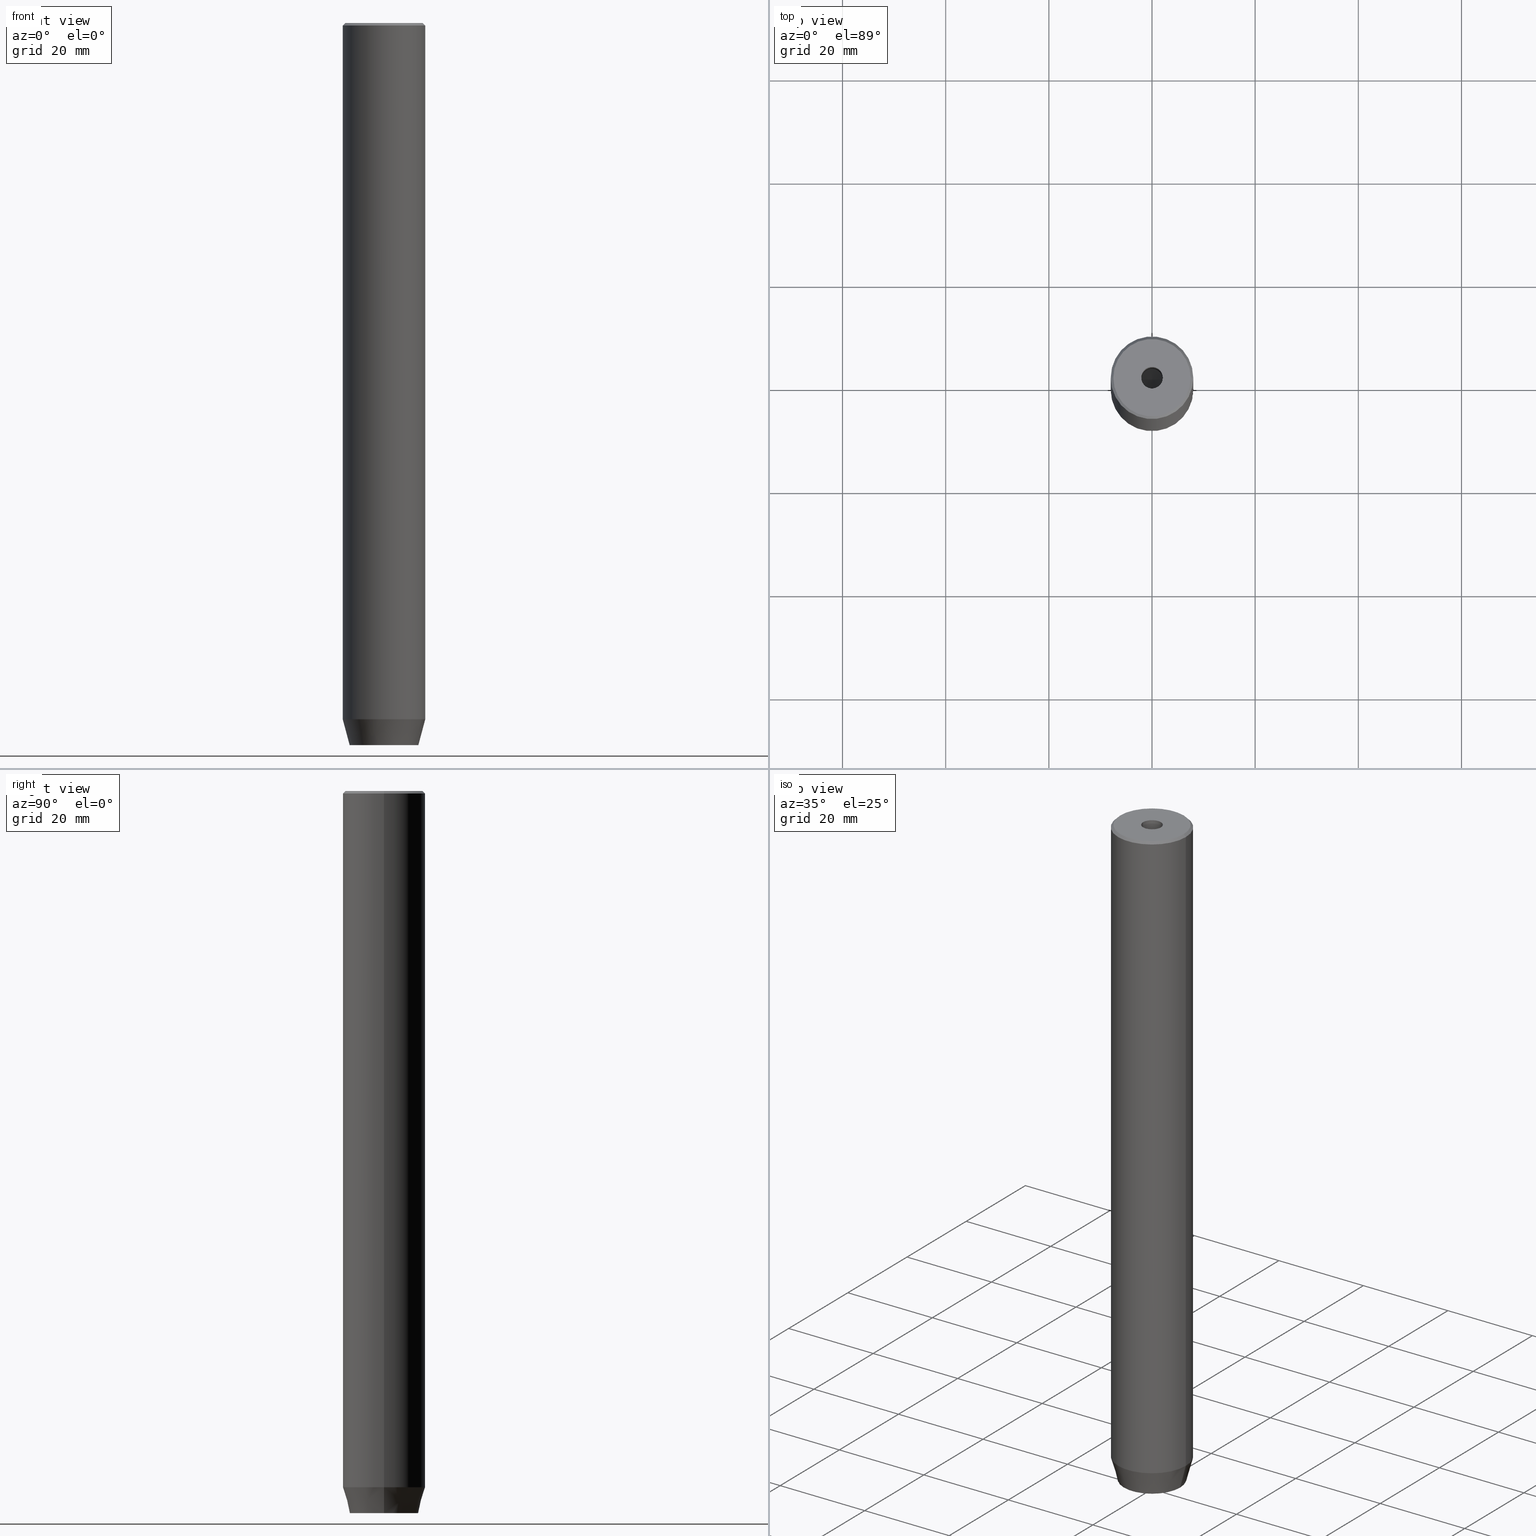
[diagram: canonical four-view strip — front | top / right | iso, engineering-drawing reading convention]
A machine part, canonical four-view strip (front | top / right | iso — engineering-drawing reading convention). The complete STEP part file that produces these views, byte-faithful:
ISO-10303-21;
HEADER;
FILE_DESCRIPTION (( 'STEP AP203' ),
    '1' );
FILE_NAME ('47f0.STEP',
    '2024-01-02T20:39:05',
    ( '' ),
    ( '' ),
    'SwSTEP 2.0',
    'SolidWorks 2019',
    '' );
FILE_SCHEMA (( 'CONFIG_CONTROL_DESIGN' ));
ENDSEC;

DATA;
#1 = DIRECTION ( 'NONE',  ( -0.000000000000000000, -0.000000000000000000, 1.000000000000000000 ) ) ;
#2 = DIRECTION ( 'NONE',  ( -0.000000000000000000, -0.000000000000000000, 1.000000000000000000 ) ) ;
#3 = APPLICATION_PROTOCOL_DEFINITION ( 'international standard', 'config_control_design', 1994, #573 ) ;
#4 = APPROVAL ( #151, 'NEUR�EN�' ) ;
#5 = CARTESIAN_POINT ( 'NONE',  ( 0.000000000000000000, 6.660254037844382857, -140.0000000000000000 ) ) ;
#6 = PERSON_AND_ORGANIZATION ( #297, #263 ) ;
#7 = DIRECTION ( 'NONE',  ( 1.000000000000000000, 0.000000000000000000, 0.000000000000000000 ) ) ;
#8 = CARTESIAN_POINT ( 'NONE',  ( 0.000000000000000000, 0.000000000000000000, 0.000000000000000000 ) ) ;
#9 = ORIENTED_EDGE ( 'NONE', *, *, #273, .T. ) ;
#10 = AXIS2_PLACEMENT_3D ( 'NONE', #95, #441, #171 ) ;
#11 = EDGE_LOOP ( 'NONE', ( #555, #379, #154, #76 ) ) ;
#12 = VECTOR ( 'NONE', #113, 1000.000000000000114 ) ;
#13 = DIRECTION ( 'NONE',  ( -0.000000000000000000, -0.000000000000000000, -1.000000000000000000 ) ) ;
#14 = ORIENTED_EDGE ( 'NONE', *, *, #393, .T. ) ;
#15 = EDGE_CURVE ( 'NONE', #427, #334, #568, .T. ) ;
#16 = ORIENTED_EDGE ( 'NONE', *, *, #462, .T. ) ;
#17 = CARTESIAN_POINT ( 'NONE',  ( -3.000000000000000888, 1.732050807568876527, -137.2000000000000171 ) ) ;
#18 = ORIENTED_EDGE ( 'NONE', *, *, #460, .F. ) ;
#19 = APPROVAL_PERSON_ORGANIZATION ( #275, #144, #50 ) ;
#20 = LOCAL_TIME ( 21, 39, 5.000000000000000000, #545 ) ;
#21 = SHAPE_DEFINITION_REPRESENTATION ( #459, #563 ) ;
#22 = ORIENTED_EDGE ( 'NONE', *, *, #513, .F. ) ;
#23 = PLANE ( 'NONE',  #534 ) ;
#24 = DIRECTION ( 'NONE',  ( -2.503857664561932376E-16, 1.000000000000000000, 0.000000000000000000 ) ) ;
#25 = ORIENTED_EDGE ( 'NONE', *, *, #329, .F. ) ;
#26 = VECTOR ( 'NONE', #253, 1000.000000000000000 ) ;
#27 = DIRECTION ( 'NONE',  ( 0.5000000000000001110, -0.8660254037844385966, 0.000000000000000000 ) ) ;
#28 = CC_DESIGN_PERSON_AND_ORGANIZATION_ASSIGNMENT ( #514, #554, ( #556 ) ) ;
#29 = ORIENTED_EDGE ( 'NONE', *, *, #522, .T. ) ;
#30 = DIRECTION ( 'NONE',  ( -0.2588190451025211836, 3.169619151431770488E-17, 0.9659258262890680902 ) ) ;
#31 = EDGE_LOOP ( 'NONE', ( #294, #71, #109, #16 ) ) ;
#32 = EDGE_CURVE ( 'NONE', #234, #575, #215, .T. ) ;
#33 = DIRECTION ( 'NONE',  ( -0.8571673007021111124, 1.049727191138617217E-16, 0.5150380749100562650 ) ) ;
#34 = ORIENTED_EDGE ( 'NONE', *, *, #32, .F. ) ;
#35 = CARTESIAN_POINT ( 'NONE',  ( 8.000000000000000000, 0.000000000000000000, -0.5000000000000073275 ) ) ;
#36 = CC_DESIGN_DATE_AND_TIME_ASSIGNMENT ( #426, #247, ( #300 ) ) ;
#37 = PLANE ( 'NONE',  #388 ) ;
#38 = VECTOR ( 'NONE', #532, 1000.000000000000114 ) ;
#39 = CARTESIAN_POINT ( 'NONE',  ( 7.499999999999992895, 9.491012693391981871E-16, 0.000000000000000000 ) ) ;
#40 = DIRECTION ( 'NONE',  ( 0.000000000000000000, 0.000000000000000000, -1.000000000000000000 ) ) ;
#41 = DIRECTION ( 'NONE',  ( 1.000000000000000000, 0.000000000000000000, 0.000000000000000000 ) ) ;
#42 = VECTOR ( 'NONE', #1, 1000.000000000000000 ) ;
#43 = CARTESIAN_POINT ( 'NONE',  ( 0.000000000000000000, 0.000000000000000000, -135.0000000000000000 ) ) ;
#44 = CARTESIAN_POINT ( 'NONE',  ( 3.000000000000000000, 1.732050807568876527, -137.2000000000000171 ) ) ;
#45 = DIRECTION ( 'NONE',  ( -0.8660254037844387076, -0.4999999999999999445, 0.000000000000000000 ) ) ;
#46 = DIRECTION ( 'NONE',  ( 1.000000000000000000, 0.000000000000000000, 0.000000000000000000 ) ) ;
#47 = CYLINDRICAL_SURFACE ( 'NONE', #245, 2.099999999999997424 ) ;
#48 = EDGE_CURVE ( 'NONE', #511, #188, #88, .T. ) ;
#49 = VECTOR ( 'NONE', #33, 1000.000000000000000 ) ;
#50 = APPROVAL_ROLE ( '' ) ;
#51 = EDGE_CURVE ( 'NONE', #122, #465, #307, .T. ) ;
#52 = CARTESIAN_POINT ( 'NONE',  ( -2.099999999999998757, 2.571758278209440478E-16, -1.990051048614449116E-16 ) ) ;
#53 = SECURITY_CLASSIFICATION_LEVEL ( 'unclassified' ) ;
#54 = VECTOR ( 'NONE', #406, 1000.000000000000000 ) ;
#55 = CC_DESIGN_SECURITY_CLASSIFICATION ( #300, ( #176 ) ) ;
#56 = CARTESIAN_POINT ( 'NONE',  ( 1.500000000000000222, 2.598076211353315568, -137.2000000000000171 ) ) ;
#57 = APPROVAL_STATUS ( 'not_yet_approved' ) ;
#58 = VERTEX_POINT ( 'NONE', #39 ) ;
#59 = ADVANCED_FACE ( 'NONE', ( #500 ), #93, .F. ) ;
#60 = PRODUCT_DEFINITION ( 'NEZN�M�', '', #176, #383 ) ;
#61 = LINE ( 'NONE', #100, #42 ) ;
#62 = VERTEX_POINT ( 'NONE', #216 ) ;
#63 = AXIS2_PLACEMENT_3D ( 'NONE', #437, #584, #402 ) ;
#64 = ORIENTED_EDGE ( 'NONE', *, *, #193, .T. ) ;
#65 = CARTESIAN_POINT ( 'NONE',  ( 0.000000000000000000, 0.000000000000000000, -0.5000000000000073275 ) ) ;
#66 = EDGE_CURVE ( 'NONE', #529, #481, #235, .T. ) ;
#67 = EDGE_LOOP ( 'NONE', ( #25, #166, #161, #240 ) ) ;
#68 = ORIENTED_EDGE ( 'NONE', *, *, #480, .T. ) ;
#69 = VECTOR ( 'NONE', #170, 1000.000000000000000 ) ;
#70 = AXIS2_PLACEMENT_3D ( 'NONE', #123, #121, #530 ) ;
#71 = ORIENTED_EDGE ( 'NONE', *, *, #189, .F. ) ;
#72 = DIRECTION ( 'NONE',  ( -0.000000000000000000, -0.000000000000000000, 1.000000000000000000 ) ) ;
#73 = AXIS2_PLACEMENT_3D ( 'NONE', #89, #212, #357 ) ;
#74 = FACE_OUTER_BOUND ( 'NONE', #486, .T. ) ;
#75 = VECTOR ( 'NONE', #287, 1000.000000000000000 ) ;
#76 = ORIENTED_EDGE ( 'NONE', *, *, #463, .F. ) ;
#77 = EDGE_CURVE ( 'NONE', #156, #435, #359, .T. ) ;
#78 = DIRECTION ( 'NONE',  ( -1.000000000000000000, 0.000000000000000000, -0.000000000000000000 ) ) ;
#79 = ORIENTED_EDGE ( 'NONE', *, *, #243, .T. ) ;
#80 = PLANE ( 'NONE',  #105 ) ;
#81 = ORIENTED_EDGE ( 'NONE', *, *, #243, .F. ) ;
#82 = DIRECTION ( 'NONE',  ( -0.8660254037844385966, 0.5000000000000001110, 0.000000000000000000 ) ) ;
#83 = ORIENTED_EDGE ( 'NONE', *, *, #66, .T. ) ;
#84 = CARTESIAN_POINT ( 'NONE',  ( 1.500000000000000222, -2.598076211353315568, -140.0000000000000000 ) ) ;
#85 = LINE ( 'NONE', #130, #484 ) ;
#86 = DIRECTION ( 'NONE',  ( -0.5000000000000001110, -0.8660254037844385966, 0.000000000000000000 ) ) ;
#87 = LINE ( 'NONE', #363, #54 ) ;
#88 = LINE ( 'NONE', #349, #551 ) ;
#89 = CARTESIAN_POINT ( 'NONE',  ( 0.000000000000000000, 0.000000000000000000, -20.00000000000000000 ) ) ;
#90 = EDGE_CURVE ( 'NONE', #234, #122, #496, .T. ) ;
#91 = FACE_OUTER_BOUND ( 'NONE', #31, .T. ) ;
#92 = EDGE_CURVE ( 'NONE', #196, #112, #352, .T. ) ;
#93 = CYLINDRICAL_SURFACE ( 'NONE', #542, 2.099999999999997424 ) ;
#94 = FACE_OUTER_BOUND ( 'NONE', #67, .T. ) ;
#95 = CARTESIAN_POINT ( 'NONE',  ( 0.000000000000000000, 0.000000000000000000, -1.990051048614449116E-16 ) ) ;
#96 = FACE_BOUND ( 'NONE', #192, .T. ) ;
#97 = PERSON_AND_ORGANIZATION_ROLE ( 'design_supplier' ) ;
#98 = DIRECTION ( 'NONE',  ( -0.8660254037844385966, 0.5000000000000001110, 0.000000000000000000 ) ) ;
#99 = EDGE_CURVE ( 'NONE', #435, #156, #259, .T. ) ;
#100 = CARTESIAN_POINT ( 'NONE',  ( -2.099999999999997424, 2.571758278209438506E-16, 0.000000000000000000 ) ) ;
#101 = AXIS2_PLACEMENT_3D ( 'NONE', #65, #239, #285 ) ;
#102 = VERTEX_POINT ( 'NONE', #587 ) ;
#103 = VERTEX_POINT ( 'NONE', #398 ) ;
#104 = LINE ( 'NONE', #17, #199 ) ;
#105 = AXIS2_PLACEMENT_3D ( 'NONE', #436, #570, #78 ) ;
#106 = APPROVAL_ROLE ( '' ) ;
#107 = ORIENTED_EDGE ( 'NONE', *, *, #372, .T. ) ;
#108 = EDGE_CURVE ( 'NONE', #122, #481, #85, .T. ) ;
#109 = ORIENTED_EDGE ( 'NONE', *, *, #92, .F. ) ;
#110 = EDGE_CURVE ( 'NONE', #465, #122, #469, .T. ) ;
#111 = EDGE_LOOP ( 'NONE', ( #281, #236, #561, #124 ) ) ;
#112 = VERTEX_POINT ( 'NONE', #264 ) ;
#113 = DIRECTION ( 'NONE',  ( -0.7071067811865474617, 0.000000000000000000, -0.7071067811865474617 ) ) ;
#114 = DIRECTION ( 'NONE',  ( 0.5000000000000001110, 0.8660254037844385966, -0.000000000000000000 ) ) ;
#115 = ORIENTED_EDGE ( 'NONE', *, *, #92, .T. ) ;
#116 = APPROVAL ( #466, 'NEUR�EN�' ) ;
#117 = VECTOR ( 'NONE', #339, 1000.000000000000000 ) ;
#118 = LINE ( 'NONE', #434, #270 ) ;
#119 = ORIENTED_EDGE ( 'NONE', *, *, #329, .T. ) ;
#120 = UNCERTAINTY_MEASURE_WITH_UNIT (LENGTH_MEASURE( 1.000000000000000082E-05 ), #187, 'distance_accuracy_value', 'NONE');
#121 = DIRECTION ( 'NONE',  ( -0.000000000000000000, -0.000000000000000000, 1.000000000000000000 ) ) ;
#122 = VERTEX_POINT ( 'NONE', #182 ) ;
#123 = CARTESIAN_POINT ( 'NONE',  ( 0.000000000000000000, 0.000000000000000000, 0.000000000000000000 ) ) ;
#124 = ORIENTED_EDGE ( 'NONE', *, *, #512, .F. ) ;
#125 = FACE_OUTER_BOUND ( 'NONE', #248, .T. ) ;
#126 = APPROVAL_PERSON_ORGANIZATION ( #337, #116, #279 ) ;
#127 = CARTESIAN_POINT ( 'NONE',  ( -1.499999999999999556, 2.598076211353316012, -137.2000000000000171 ) ) ;
#128 = LINE ( 'NONE', #538, #162 ) ;
#129 = FACE_OUTER_BOUND ( 'NONE', #202, .T. ) ;
#130 = CARTESIAN_POINT ( 'NONE',  ( 8.000000000000000000, 0.000000000000000000, 0.000000000000000000 ) ) ;
#131 = LINE ( 'NONE', #399, #326 ) ;
#132 = CARTESIAN_POINT ( 'NONE',  ( 7.499999999999992895, 9.184850993605140056E-16, 0.000000000000000000 ) ) ;
#133 = CARTESIAN_POINT ( 'NONE',  ( 0.000000000000000000, 0.000000000000000000, -1.990051048614449116E-16 ) ) ;
#134 = DIRECTION ( 'NONE',  ( -0.000000000000000000, -0.000000000000000000, 1.000000000000000000 ) ) ;
#135 = CARTESIAN_POINT ( 'NONE',  ( -2.168404344971008868E-16, -3.464101615137754830, -137.2000000000000171 ) ) ;
#136 = AXIS2_PLACEMENT_3D ( 'NONE', #8, #146, #415 ) ;
#137 = FACE_OUTER_BOUND ( 'NONE', #111, .T. ) ;
#138 = CALENDAR_DATE ( 2024, 2, 1 ) ;
#139 = CARTESIAN_POINT ( 'NONE',  ( 2.099999999999996092, 0.000000000000000000, -20.00000000000000000 ) ) ;
#140 = ADVANCED_FACE ( 'NONE', ( #137 ), #429, .T. ) ;
#141 =( NAMED_UNIT ( * ) SI_UNIT ( $, .STERADIAN. ) SOLID_ANGLE_UNIT ( ) );
#142 = APPLICATION_CONTEXT ( 'configuration controlled 3d designs of mechanical parts and assemblies' ) ;
#143 = PLANE ( 'NONE',  #147 ) ;
#144 = APPROVAL ( #57, 'NEUR�EN�' ) ;
#145 = VECTOR ( 'NONE', #489, 1000.000000000000000 ) ;
#146 = DIRECTION ( 'NONE',  ( 0.000000000000000000, 0.000000000000000000, 1.000000000000000000 ) ) ;
#147 = AXIS2_PLACEMENT_3D ( 'NONE', #218, #260, #306 ) ;
#148 = ORIENTED_EDGE ( 'NONE', *, *, #205, .F. ) ;
#149 = CC_DESIGN_APPROVAL ( #144, ( #176 ) ) ;
#150 = EDGE_CURVE ( 'NONE', #418, #58, #319, .T. ) ;
#151 = APPROVAL_STATUS ( 'not_yet_approved' ) ;
#152 = ORIENTED_EDGE ( 'NONE', *, *, #480, .F. ) ;
#153 = AXIS2_PLACEMENT_3D ( 'NONE', #133, #490, #304 ) ;
#154 = ORIENTED_EDGE ( 'NONE', *, *, #512, .T. ) ;
#155 = ORIENTED_EDGE ( 'NONE', *, *, #578, .F. ) ;
#156 = VERTEX_POINT ( 'NONE', #255 ) ;
#157 = PRODUCT_RELATED_PRODUCT_CATEGORY ( 'detail', '', ( #556 ) ) ;
#158 = ORIENTED_EDGE ( 'NONE', *, *, #518, .F. ) ;
#159 = LINE ( 'NONE', #179, #12 ) ;
#160 = LINE ( 'NONE', #84, #180 ) ;
#161 = ORIENTED_EDGE ( 'NONE', *, *, #99, .T. ) ;
#162 = VECTOR ( 'NONE', #478, 1000.000000000000000 ) ;
#163 = CC_DESIGN_APPROVAL ( #116, ( #300 ) ) ;
#164 = EDGE_CURVE ( 'NONE', #476, #334, #207, .T. ) ;
#165 = CARTESIAN_POINT ( 'NONE',  ( 3.000000000000000000, 0.000000000000000000, -137.2000000000000171 ) ) ;
#166 = ORIENTED_EDGE ( 'NONE', *, *, #578, .T. ) ;
#167 = EDGE_CURVE ( 'NONE', #367, #427, #160, .T. ) ;
#168 = DIRECTION ( 'NONE',  ( -1.000000000000000000, -2.503857664561933362E-16, 0.000000000000000000 ) ) ;
#169 = ORIENTED_EDGE ( 'NONE', *, *, #237, .F. ) ;
#170 = DIRECTION ( 'NONE',  ( 0.000000000000000000, -1.000000000000000000, 0.000000000000000000 ) ) ;
#171 = DIRECTION ( 'NONE',  ( 1.000000000000000000, 0.000000000000000000, 0.000000000000000000 ) ) ;
#172 = FACE_OUTER_BOUND ( 'NONE', #195, .T. ) ;
#173 = DIRECTION ( 'NONE',  ( 1.000000000000000000, 0.000000000000000000, 0.000000000000000000 ) ) ;
#174 = AXIS2_PLACEMENT_3D ( 'NONE', #5, #499, #447 ) ;
#175 = DIRECTION ( 'NONE',  ( 1.000000000000000000, 0.000000000000000000, 0.000000000000000000 ) ) ;
#176 = PRODUCT_DEFINITION_FORMATION_WITH_SPECIFIED_SOURCE ( 'LIBOVOLN�', '', #556, .NOT_KNOWN. ) ;
#177 = ADVANCED_FACE ( 'NONE', ( #567 ), #80, .T. ) ;
#178 = CARTESIAN_POINT ( 'NONE',  ( -1.500000000000000666, -2.598076211353316456, -140.0000000000000000 ) ) ;
#179 = CARTESIAN_POINT ( 'NONE',  ( -7.499999999999992895, 0.000000000000000000, 0.000000000000000000 ) ) ;
#180 = VECTOR ( 'NONE', #479, 1000.000000000000000 ) ;
#181 = PLANE ( 'NONE',  #174 ) ;
#182 = CARTESIAN_POINT ( 'NONE',  ( 8.000000000000000000, 0.000000000000000000, -135.0000000000000000 ) ) ;
#183 = PERSON_AND_ORGANIZATION_ROLE ( 'creator' ) ;
#184 = FACE_OUTER_BOUND ( 'NONE', #433, .T. ) ;
#185 = DATE_AND_TIME ( #405, #509 ) ;
#186 = CARTESIAN_POINT ( 'NONE',  ( 0.000000000000000000, 0.000000000000000000, 0.000000000000000000 ) ) ;
#187 =( LENGTH_UNIT ( ) NAMED_UNIT ( * ) SI_UNIT ( .MILLI., .METRE. ) );
#188 = VERTEX_POINT ( 'NONE', #251 ) ;
#189 = EDGE_CURVE ( 'NONE', #112, #188, #340, .T. ) ;
#190 = MECHANICAL_CONTEXT ( 'NONE', #573, 'mechanical' ) ;
#191 = CIRCLE ( 'NONE', #373, 6.660254037844382857 ) ;
#192 = EDGE_LOOP ( 'NONE', ( #276, #211, #557, #517, #238, #519 ) ) ;
#193 = EDGE_CURVE ( 'NONE', #465, #529, #425, .T. ) ;
#194 = DATE_AND_TIME ( #330, #581 ) ;
#195 = EDGE_LOOP ( 'NONE', ( #278, #411, #209, #507 ) ) ;
#196 = VERTEX_POINT ( 'NONE', #483 ) ;
#197 = AXIS2_PLACEMENT_3D ( 'NONE', #298, #114, #82 ) ;
#198 = ORIENTED_EDGE ( 'NONE', *, *, #237, .T. ) ;
#199 = VECTOR ( 'NONE', #13, 1000.000000000000000 ) ;
#200 = ORIENTED_EDGE ( 'NONE', *, *, #205, .T. ) ;
#201 = LINE ( 'NONE', #249, #336 ) ;
#202 = EDGE_LOOP ( 'NONE', ( #18, #200, #119 ) ) ;
#203 = AXIS2_PLACEMENT_3D ( 'NONE', #360, #544, #386 ) ;
#204 = FACE_OUTER_BOUND ( 'NONE', #488, .T. ) ;
#205 = EDGE_CURVE ( 'NONE', #62, #324, #210, .T. ) ;
#206 = VERTEX_POINT ( 'NONE', #432 ) ;
#207 = LINE ( 'NONE', #384, #26 ) ;
#208 = EDGE_CURVE ( 'NONE', #334, #511, #380, .T. ) ;
#209 = ORIENTED_EDGE ( 'NONE', *, *, #372, .F. ) ;
#210 = LINE ( 'NONE', #528, #49 ) ;
#211 = ORIENTED_EDGE ( 'NONE', *, *, #208, .F. ) ;
#212 = DIRECTION ( 'NONE',  ( -0.000000000000000000, -0.000000000000000000, 1.000000000000000000 ) ) ;
#213 = PLANE ( 'NONE',  #485 ) ;
#214 = AXIS2_PLACEMENT_3D ( 'NONE', #317, #223, #350 ) ;
#215 = CIRCLE ( 'NONE', #414, 6.660254037844382857 ) ;
#216 = CARTESIAN_POINT ( 'NONE',  ( -5.207640850796248781E-15, 0.000000000000000000, -21.26180729995787999 ) ) ;
#217 = CYLINDRICAL_SURFACE ( 'NONE', #443, 8.000000000000000000 ) ;
#218 = CARTESIAN_POINT ( 'NONE',  ( 0.000000000000000000, 0.000000000000000000, 0.000000000000000000 ) ) ;
#219 = VECTOR ( 'NONE', #455, 1000.000000000000000 ) ;
#220 = DIRECTION ( 'NONE',  ( 0.000000000000000000, 0.000000000000000000, -1.000000000000000000 ) ) ;
#221 = LOCAL_TIME ( 21, 39, 5.000000000000000000, #408 ) ;
#222 = LINE ( 'NONE', #335, #117 ) ;
#223 = DIRECTION ( 'NONE',  ( 1.000000000000000000, 0.000000000000000000, -0.000000000000000000 ) ) ;
#224 = DIRECTION ( 'NONE',  ( -0.000000000000000000, -0.000000000000000000, 1.000000000000000000 ) ) ;
#225 = CALENDAR_DATE ( 2024, 2, 1 ) ;
#226 = EDGE_CURVE ( 'NONE', #346, #427, #118, .T. ) ;
#227 = AXIS2_PLACEMENT_3D ( 'NONE', #43, #540, #261 ) ;
#228 = CARTESIAN_POINT ( 'NONE',  ( -2.168404344971008868E-16, -3.464101615137754830, -140.0000000000000000 ) ) ;
#229 = COORDINATED_UNIVERSAL_TIME_OFFSET ( 1, 0, .AHEAD. ) ;
#230 = CARTESIAN_POINT ( 'NONE',  ( -2.099999999999996092, 2.571758278209436534E-16, -20.00000000000000000 ) ) ;
#231 = PERSON_AND_ORGANIZATION_ROLE ( 'classification_officer' ) ;
#232 = CC_DESIGN_PERSON_AND_ORGANIZATION_ASSIGNMENT ( #6, #231, ( #300 ) ) ;
#233 = CARTESIAN_POINT ( 'NONE',  ( -3.000000000000000000, -1.732050807568877859, -140.0000000000000000 ) ) ;
#234 = VERTEX_POINT ( 'NONE', #301 ) ;
#235 = CIRCLE ( 'NONE', #280, 8.000000000000000000 ) ;
#236 = ORIENTED_EDGE ( 'NONE', *, *, #345, .T. ) ;
#237 = EDGE_CURVE ( 'NONE', #575, #465, #201, .T. ) ;
#238 = ORIENTED_EDGE ( 'NONE', *, *, #482, .F. ) ;
#239 = DIRECTION ( 'NONE',  ( 0.000000000000000000, 0.000000000000000000, -1.000000000000000000 ) ) ;
#240 = ORIENTED_EDGE ( 'NONE', *, *, #565, .F. ) ;
#241 = EDGE_CURVE ( 'NONE', #58, #418, #347, .T. ) ;
#242 = ORIENTED_EDGE ( 'NONE', *, *, #462, .F. ) ;
#243 = EDGE_CURVE ( 'NONE', #103, #564, #576, .T. ) ;
#244 = ORIENTED_EDGE ( 'NONE', *, *, #51, .F. ) ;
#245 = AXIS2_PLACEMENT_3D ( 'NONE', #186, #2, #365 ) ;
#246 = DIRECTION ( 'NONE',  ( -0.000000000000000000, -0.000000000000000000, -1.000000000000000000 ) ) ;
#247 = DATE_TIME_ROLE ( 'classification_date' ) ;
#248 = EDGE_LOOP ( 'NONE', ( #9, #22, #343, #424 ) ) ;
#249 = CARTESIAN_POINT ( 'NONE',  ( -8.000000000000000000, 9.797174393178825657E-16, -135.0000000000000000 ) ) ;
#250 = ORIENTED_EDGE ( 'NONE', *, *, #518, .T. ) ;
#251 = CARTESIAN_POINT ( 'NONE',  ( 0.000000000000000000, 3.464101615137754386, -140.0000000000000000 ) ) ;
#252 = ORIENTED_EDGE ( 'NONE', *, *, #77, .F. ) ;
#253 = DIRECTION ( 'NONE',  ( -0.000000000000000000, -0.000000000000000000, -1.000000000000000000 ) ) ;
#254 = ORIENTED_EDGE ( 'NONE', *, *, #110, .F. ) ;
#255 = CARTESIAN_POINT ( 'NONE',  ( 2.099999999999998757, 0.000000000000000000, -1.990051048614449116E-16 ) ) ;
#256 = CARTESIAN_POINT ( 'NONE',  ( 0.000000000000000000, 0.000000000000000000, -140.0000000000000000 ) ) ;
#257 = DIRECTION ( 'NONE',  ( -1.000000000000000000, 0.000000000000000000, 0.000000000000000000 ) ) ;
#258 = CC_DESIGN_PERSON_AND_ORGANIZATION_ASSIGNMENT ( #364, #318, ( #176 ) ) ;
#259 = CIRCLE ( 'NONE', #153, 2.099999999999998757 ) ;
#260 = DIRECTION ( 'NONE',  ( 0.000000000000000000, -0.000000000000000000, 1.000000000000000000 ) ) ;
#261 = DIRECTION ( 'NONE',  ( 1.000000000000000000, 0.000000000000000000, 0.000000000000000000 ) ) ;
#262 = CARTESIAN_POINT ( 'NONE',  ( -1.499999999999999556, 2.598076211353316012, -137.2000000000000171 ) ) ;
#263 = ORGANIZATION ( 'NEUR�EN�', 'NEUR�EN�', '' ) ;
#264 = CARTESIAN_POINT ( 'NONE',  ( -1.084202172485504434E-16, 3.464101615137754830, -137.2000000000000171 ) ) ;
#265 = ADVANCED_FACE ( 'NONE', ( #74 ), #37, .F. ) ;
#266 = CARTESIAN_POINT ( 'NONE',  ( -3.000000000000000000, -1.732050807568877859, -137.2000000000000171 ) ) ;
#267 = LINE ( 'NONE', #132, #390 ) ;
#268 = DIRECTION ( 'NONE',  ( -0.000000000000000000, -0.000000000000000000, 1.000000000000000000 ) ) ;
#269 = APPLICATION_PROTOCOL_DEFINITION ( 'international standard', 'config_control_design', 1994, #142 ) ;
#270 = VECTOR ( 'NONE', #288, 1000.000000000000000 ) ;
#271 = CARTESIAN_POINT ( 'NONE',  ( 0.000000000000000000, 0.000000000000000000, -135.0000000000000000 ) ) ;
#272 = FACE_BOUND ( 'NONE', #296, .T. ) ;
#273 = EDGE_CURVE ( 'NONE', #188, #206, #377, .T. ) ;
#274 = AXIS2_PLACEMENT_3D ( 'NONE', #389, #40, #257 ) ;
#275 = PERSON_AND_ORGANIZATION ( #297, #263 ) ;
#276 = ORIENTED_EDGE ( 'NONE', *, *, #48, .F. ) ;
#277 = CONICAL_SURFACE ( 'NONE', #274, 7.499999999999992895, 0.7853981633974482790 ) ;
#278 = ORIENTED_EDGE ( 'NONE', *, *, #15, .T. ) ;
#279 = APPROVAL_ROLE ( '' ) ;
#280 = AXIS2_PLACEMENT_3D ( 'NONE', #392, #220, #448 ) ;
#281 = ORIENTED_EDGE ( 'NONE', *, *, #241, .F. ) ;
#282 = ORIENTED_EDGE ( 'NONE', *, *, #110, .T. ) ;
#283 = APPROVAL_DATE_TIME ( #194, #116 ) ;
#284 = EDGE_LOOP ( 'NONE', ( #381, #286 ) ) ;
#285 = DIRECTION ( 'NONE',  ( 1.000000000000000000, 0.000000000000000000, 0.000000000000000000 ) ) ;
#286 = ORIENTED_EDGE ( 'NONE', *, *, #241, .T. ) ;
#287 = DIRECTION ( 'NONE',  ( -0.000000000000000000, -0.000000000000000000, -1.000000000000000000 ) ) ;
#288 = DIRECTION ( 'NONE',  ( -0.000000000000000000, -0.000000000000000000, -1.000000000000000000 ) ) ;
#289 = COORDINATED_UNIVERSAL_TIME_OFFSET ( 1, 0, .AHEAD. ) ;
#290 = EDGE_LOOP ( 'NONE', ( #155, #416, #457, #371 ) ) ;
#291 = AXIS2_PLACEMENT_3D ( 'NONE', #523, #562, #533 ) ;
#292 = ADVANCED_FACE ( 'NONE', ( #204 ), #213, .F. ) ;
#293 = CARTESIAN_POINT ( 'NONE',  ( 0.000000000000000000, 0.000000000000000000, 0.000000000000000000 ) ) ;
#294 = ORIENTED_EDGE ( 'NONE', *, *, #48, .T. ) ;
#295 = PLANE ( 'NONE',  #197 ) ;
#296 = EDGE_LOOP ( 'NONE', ( #252, #572 ) ) ;
#297 = PERSON ( 'NEUR�EN�', 'NEUR�EN�', 'NEUR�EN�', ('NEUR�EN�'), ('NEUR�EN�'), ('NEUR�EN�') ) ;
#298 = CARTESIAN_POINT ( 'NONE',  ( 1.500000000000000222, 2.598076211353315568, -137.2000000000000171 ) ) ;
#299 = ORIENTED_EDGE ( 'NONE', *, *, #460, .T. ) ;
#300 = SECURITY_CLASSIFICATION ( '', '', #53 ) ;
#301 = CARTESIAN_POINT ( 'NONE',  ( 6.660254037844382857, 0.000000000000000000, -140.0000000000000000 ) ) ;
#302 = CC_DESIGN_PERSON_AND_ORGANIZATION_ASSIGNMENT ( #503, #97, ( #176 ) ) ;
#303 = DIRECTION ( 'NONE',  ( -0.000000000000000000, -0.000000000000000000, 1.000000000000000000 ) ) ;
#304 = DIRECTION ( 'NONE',  ( 1.000000000000000000, 0.000000000000000000, 0.000000000000000000 ) ) ;
#305 = DIRECTION ( 'NONE',  ( 0.000000000000000000, -1.000000000000000000, 0.000000000000000000 ) ) ;
#306 = DIRECTION ( 'NONE',  ( 1.000000000000000000, 0.000000000000000000, 0.000000000000000000 ) ) ;
#307 = CIRCLE ( 'NONE', #494, 8.000000000000000000 ) ;
#308 = ADVANCED_FACE ( 'NONE', ( #526 ), #520, .T. ) ;
#309 = DIRECTION ( 'NONE',  ( 0.8660254037844387076, 0.4999999999999999445, 0.000000000000000000 ) ) ;
#310 = CARTESIAN_POINT ( 'NONE',  ( 3.000000000000000000, -1.732050807568876527, -137.2000000000000171 ) ) ;
#311 = DIRECTION ( 'NONE',  ( -0.000000000000000000, -0.000000000000000000, 1.000000000000000000 ) ) ;
#312 = VECTOR ( 'NONE', #72, 1000.000000000000000 ) ;
#313 = ADVANCED_FACE ( 'NONE', ( #125 ), #295, .F. ) ;
#314 = CARTESIAN_POINT ( 'NONE',  ( 0.000000000000000000, 0.000000000000000000, 0.000000000000000000 ) ) ;
#315 = MANIFOLD_SOLID_BREP ( 'Vrt�k z�vitn�ku pro M5 z�vit1', #322 ) ;
#316 = APPROVAL_DATE_TIME ( #361, #4 ) ;
#317 = CARTESIAN_POINT ( 'NONE',  ( 3.000000000000000000, 0.000000000000000000, -137.2000000000000171 ) ) ;
#318 = PERSON_AND_ORGANIZATION_ROLE ( 'creator' ) ;
#319 = CIRCLE ( 'NONE', #203, 7.499999999999992895 ) ;
#320 = FACE_OUTER_BOUND ( 'NONE', #521, .T. ) ;
#321 = AXIS2_PLACEMENT_3D ( 'NONE', #358, #401, #444 ) ;
#322 = CLOSED_SHELL ( 'NONE', ( #451, #419, #140, #400, #308, #431, #356, #559, #569, #546, #421, #292, #472, #265, #378, #313, #177, #536, #59 ) ) ;
#323 = PERSON_AND_ORGANIZATION ( #297, #263 ) ;
#324 = VERTEX_POINT ( 'NONE', #230 ) ;
#325 = AXIS2_PLACEMENT_3D ( 'NONE', #271, #311, #7 ) ;
#326 = VECTOR ( 'NONE', #305, 1000.000000000000000 ) ;
#327 = DIRECTION ( 'NONE',  ( 1.000000000000000000, 0.000000000000000000, 0.000000000000000000 ) ) ;
#328 = EDGE_LOOP ( 'NONE', ( #115, #14, #79, #250, #107, #68 ) ) ;
#329 = EDGE_CURVE ( 'NONE', #324, #102, #413, .T. ) ;
#330 = CALENDAR_DATE ( 2024, 2, 1 ) ;
#331 = ORIENTED_EDGE ( 'NONE', *, *, #397, .T. ) ;
#332 = ORIENTED_EDGE ( 'NONE', *, *, #164, .T. ) ;
#333 = CC_DESIGN_PERSON_AND_ORGANIZATION_ASSIGNMENT ( #323, #183, ( #60 ) ) ;
#334 = VERTEX_POINT ( 'NONE', #233 ) ;
#335 = CARTESIAN_POINT ( 'NONE',  ( 1.500000000000000222, -2.598076211353315568, -137.2000000000000171 ) ) ;
#336 = VECTOR ( 'NONE', #30, 1000.000000000000114 ) ;
#337 = PERSON_AND_ORGANIZATION ( #297, #263 ) ;
#338 = EDGE_LOOP ( 'NONE', ( #148, #299, #29 ) ) ;
#339 = DIRECTION ( 'NONE',  ( -0.8660254037844385966, -0.5000000000000001110, 0.000000000000000000 ) ) ;
#340 = LINE ( 'NONE', #524, #412 ) ;
#341 = ORIENTED_EDGE ( 'NONE', *, *, #108, .T. ) ;
#342 = DIRECTION ( 'NONE',  ( 2.503857664561933362E-16, -1.000000000000000000, 0.000000000000000000 ) ) ;
#343 = ORIENTED_EDGE ( 'NONE', *, *, #393, .F. ) ;
#344 = DIRECTION ( 'NONE',  ( -0.000000000000000000, -0.000000000000000000, 1.000000000000000000 ) ) ;
#345 = EDGE_CURVE ( 'NONE', #58, #481, #267, .T. ) ;
#346 = VERTEX_POINT ( 'NONE', #135 ) ;
#347 = CIRCLE ( 'NONE', #504, 7.499999999999992895 ) ;
#348 = CARTESIAN_POINT ( 'NONE',  ( 1.500000000000000222, 2.598076211353315568, -140.0000000000000000 ) ) ;
#349 = CARTESIAN_POINT ( 'NONE',  ( -1.499999999999999556, 2.598076211353316012, -140.0000000000000000 ) ) ;
#350 = DIRECTION ( 'NONE',  ( -0.000000000000000000, 0.000000000000000000, -1.000000000000000000 ) ) ;
#351 = AXIS2_PLACEMENT_3D ( 'NONE', #510, #548, #327 ) ;
#352 = LINE ( 'NONE', #127, #422 ) ;
#353 = CARTESIAN_POINT ( 'NONE',  ( -1.500000000000000666, -2.598076211353316456, -137.2000000000000171 ) ) ;
#354 = DIRECTION ( 'NONE',  ( -0.000000000000000000, -0.000000000000000000, 1.000000000000000000 ) ) ;
#355 = DIRECTION ( 'NONE',  ( 1.000000000000000000, 0.000000000000000000, 0.000000000000000000 ) ) ;
#356 = ADVANCED_FACE ( 'NONE', ( #272, #583 ), #143, .T. ) ;
#357 = DIRECTION ( 'NONE',  ( 1.000000000000000000, 0.000000000000000000, 0.000000000000000000 ) ) ;
#358 = CARTESIAN_POINT ( 'NONE',  ( 0.000000000000000000, 0.000000000000000000, -20.00000000000000000 ) ) ;
#359 = CIRCLE ( 'NONE', #10, 2.099999999999998757 ) ;
#360 = CARTESIAN_POINT ( 'NONE',  ( 0.000000000000000000, 0.000000000000000000, 0.000000000000000000 ) ) ;
#361 = DATE_AND_TIME ( #225, #382 ) ;
#362 = CC_DESIGN_DATE_AND_TIME_ASSIGNMENT ( #501, #449, ( #60 ) ) ;
#363 = CARTESIAN_POINT ( 'NONE',  ( 3.000000000000000000, -1.732050807568876527, -137.2000000000000171 ) ) ;
#364 = PERSON_AND_ORGANIZATION ( #297, #263 ) ;
#365 = DIRECTION ( 'NONE',  ( 1.000000000000000000, 0.000000000000000000, 0.000000000000000000 ) ) ;
#366 = CALENDAR_DATE ( 2024, 2, 1 ) ;
#367 = VERTEX_POINT ( 'NONE', #543 ) ;
#368 = ORIENTED_EDGE ( 'NONE', *, *, #90, .F. ) ;
#369 = ORIENTED_EDGE ( 'NONE', *, *, #513, .T. ) ;
#370 = VECTOR ( 'NONE', #24, 1000.000000000000000 ) ;
#371 = ORIENTED_EDGE ( 'NONE', *, *, #77, .T. ) ;
#372 = EDGE_CURVE ( 'NONE', #346, #476, #453, .T. ) ;
#373 = AXIS2_PLACEMENT_3D ( 'NONE', #440, #404, #41 ) ;
#374 = ORIENTED_EDGE ( 'NONE', *, *, #407, .T. ) ;
#375 = CARTESIAN_POINT ( 'NONE',  ( -8.000000000000000000, 9.797174393178825657E-16, -0.5000000000000073275 ) ) ;
#376 = ORIENTED_EDGE ( 'NONE', *, *, #167, .T. ) ;
#377 = LINE ( 'NONE', #348, #145 ) ;
#378 = ADVANCED_FACE ( 'NONE', ( #320 ), #409, .F. ) ;
#379 = ORIENTED_EDGE ( 'NONE', *, *, #150, .F. ) ;
#380 = LINE ( 'NONE', #474, #370 ) ;
#381 = ORIENTED_EDGE ( 'NONE', *, *, #150, .T. ) ;
#382 = LOCAL_TIME ( 21, 39, 5.000000000000000000, #403 ) ;
#383 = DESIGN_CONTEXT ( 'detailed design', #142, 'design' ) ;
#384 = CARTESIAN_POINT ( 'NONE',  ( -3.000000000000000000, -1.732050807568877859, -137.2000000000000171 ) ) ;
#385 = ORIENTED_EDGE ( 'NONE', *, *, #51, .T. ) ;
#386 = DIRECTION ( 'NONE',  ( 1.000000000000000000, 0.000000000000000000, 0.000000000000000000 ) ) ;
#387 = EDGE_LOOP ( 'NONE', ( #169, #374, #516, #254 ) ) ;
#388 = AXIS2_PLACEMENT_3D ( 'NONE', #391, #27, #574 ) ;
#389 = CARTESIAN_POINT ( 'NONE',  ( 0.000000000000000000, 0.000000000000000000, 0.000000000000000000 ) ) ;
#390 = VECTOR ( 'NONE', #450, 1000.000000000000114 ) ;
#391 = CARTESIAN_POINT ( 'NONE',  ( 1.500000000000000222, -2.598076211353315568, -137.2000000000000171 ) ) ;
#392 = CARTESIAN_POINT ( 'NONE',  ( 0.000000000000000000, 0.000000000000000000, -0.5000000000000073275 ) ) ;
#393 = EDGE_CURVE ( 'NONE', #112, #103, #502, .T. ) ;
#394 = DIRECTION ( 'NONE',  ( 1.000000000000000000, 0.000000000000000000, 0.000000000000000000 ) ) ;
#395 = CONICAL_SURFACE ( 'NONE', #351, 8.000000000000000000, 0.2617993877991499074 ) ;
#396 = DIRECTION ( 'NONE',  ( 0.8660254037844385966, -0.5000000000000001110, 0.000000000000000000 ) ) ;
#397 = EDGE_CURVE ( 'NONE', #564, #367, #87, .T. ) ;
#398 = CARTESIAN_POINT ( 'NONE',  ( 3.000000000000000000, 1.732050807568876527, -137.2000000000000171 ) ) ;
#399 = CARTESIAN_POINT ( 'NONE',  ( 3.000000000000000000, 0.000000000000000000, -140.0000000000000000 ) ) ;
#400 = ADVANCED_FACE ( 'NONE', ( #491 ), #475, .T. ) ;
#401 = DIRECTION ( 'NONE',  ( -0.000000000000000000, -0.000000000000000000, 1.000000000000000000 ) ) ;
#402 = DIRECTION ( 'NONE',  ( -1.000000000000000000, 0.000000000000000000, 0.000000000000000000 ) ) ;
#403 = COORDINATED_UNIVERSAL_TIME_OFFSET ( 1, 0, .AHEAD. ) ;
#404 = DIRECTION ( 'NONE',  ( -0.000000000000000000, -0.000000000000000000, 1.000000000000000000 ) ) ;
#405 = CALENDAR_DATE ( 2024, 2, 1 ) ;
#406 = DIRECTION ( 'NONE',  ( -0.000000000000000000, -0.000000000000000000, -1.000000000000000000 ) ) ;
#407 = EDGE_CURVE ( 'NONE', #575, #234, #191, .T. ) ;
#408 = COORDINATED_UNIVERSAL_TIME_OFFSET ( 1, 0, .AHEAD. ) ;
#409 = PLANE ( 'NONE',  #214 ) ;
#410 = APPROVAL_DATE_TIME ( #185, #144 ) ;
#411 = ORIENTED_EDGE ( 'NONE', *, *, #164, .F. ) ;
#412 = VECTOR ( 'NONE', #246, 1000.000000000000000 ) ;
#413 = CIRCLE ( 'NONE', #321, 2.099999999999996092 ) ;
#414 = AXIS2_PLACEMENT_3D ( 'NONE', #256, #492, #46 ) ;
#415 = DIRECTION ( 'NONE',  ( 1.000000000000000000, 0.000000000000000000, 0.000000000000000000 ) ) ;
#416 = ORIENTED_EDGE ( 'NONE', *, *, #522, .F. ) ;
#417 = CC_DESIGN_APPROVAL ( #4, ( #60 ) ) ;
#418 = VERTEX_POINT ( 'NONE', #535 ) ;
#419 = ADVANCED_FACE ( 'NONE', ( #129 ), #452, .F. ) ;
#420 = EDGE_LOOP ( 'NONE', ( #527, #198, #244, #368 ) ) ;
#421 = ADVANCED_FACE ( 'NONE', ( #91 ), #586, .F. ) ;
#422 = VECTOR ( 'NONE', #537, 999.9999999999998863 ) ;
#423 = ORIENTED_EDGE ( 'NONE', *, *, #407, .F. ) ;
#424 = ORIENTED_EDGE ( 'NONE', *, *, #189, .T. ) ;
#425 = LINE ( 'NONE', #487, #458 ) ;
#426 = DATE_AND_TIME ( #366, #221 ) ;
#427 = VERTEX_POINT ( 'NONE', #228 ) ;
#428 = DIRECTION ( 'NONE',  ( -0.000000000000000000, -0.000000000000000000, 1.000000000000000000 ) ) ;
#429 = CONICAL_SURFACE ( 'NONE', #63, 7.499999999999992895, 0.7853981633974482790 ) ;
#430 = ORIENTED_EDGE ( 'NONE', *, *, #226, .F. ) ;
#431 = ADVANCED_FACE ( 'NONE', ( #96, #184 ), #181, .T. ) ;
#432 = CARTESIAN_POINT ( 'NONE',  ( 3.000000000000000000, 1.732050807568876527, -140.0000000000000000 ) ) ;
#433 = EDGE_LOOP ( 'NONE', ( #34, #423 ) ) ;
#434 = CARTESIAN_POINT ( 'NONE',  ( -2.168404344971008868E-16, -3.464101615137754830, -137.2000000000000171 ) ) ;
#435 = VERTEX_POINT ( 'NONE', #52 ) ;
#436 = CARTESIAN_POINT ( 'NONE',  ( 0.000000000000000000, 0.000000000000000000, -137.2000000000000171 ) ) ;
#437 = CARTESIAN_POINT ( 'NONE',  ( 0.000000000000000000, 0.000000000000000000, 0.000000000000000000 ) ) ;
#438 = FACE_OUTER_BOUND ( 'NONE', #515, .T. ) ;
#439 = VECTOR ( 'NONE', #580, 1000.000000000000000 ) ;
#440 = CARTESIAN_POINT ( 'NONE',  ( 0.000000000000000000, 0.000000000000000000, -140.0000000000000000 ) ) ;
#441 = DIRECTION ( 'NONE',  ( -0.000000000000000000, -0.000000000000000000, 1.000000000000000000 ) ) ;
#442 = FACE_OUTER_BOUND ( 'NONE', #338, .T. ) ;
#443 = AXIS2_PLACEMENT_3D ( 'NONE', #541, #134, #394 ) ;
#444 = DIRECTION ( 'NONE',  ( 1.000000000000000000, 0.000000000000000000, 0.000000000000000000 ) ) ;
#445 = CARTESIAN_POINT ( 'NONE',  ( 0.000000000000000000, 0.000000000000000000, -135.0000000000000000 ) ) ;
#446 =( NAMED_UNIT ( * ) PLANE_ANGLE_UNIT ( ) SI_UNIT ( $, .RADIAN. ) );
#447 = DIRECTION ( 'NONE',  ( -1.000000000000000000, 0.000000000000000000, -0.000000000000000000 ) ) ;
#448 = DIRECTION ( 'NONE',  ( 1.000000000000000000, 0.000000000000000000, 0.000000000000000000 ) ) ;
#449 = DATE_TIME_ROLE ( 'creation_date' ) ;
#450 = DIRECTION ( 'NONE',  ( 0.7071067811865474617, 8.659560562354932858E-17, -0.7071067811865474617 ) ) ;
#451 = ADVANCED_FACE ( 'NONE', ( #94 ), #47, .F. ) ;
#452 = CONICAL_SURFACE ( 'NONE', #560, 2.099999999999996092, 1.029744258676652091 ) ;
#453 = LINE ( 'NONE', #495, #470 ) ;
#454 = EDGE_LOOP ( 'NONE', ( #385, #64, #83, #558 ) ) ;
#455 = DIRECTION ( 'NONE',  ( 0.8571673007021111124, 0.000000000000000000, 0.5150380749100562650 ) ) ;
#456 = CARTESIAN_POINT ( 'NONE',  ( -6.660254037844382857, 8.976816591066591237E-16, -140.0000000000000000 ) ) ;
#457 = ORIENTED_EDGE ( 'NONE', *, *, #565, .T. ) ;
#458 = VECTOR ( 'NONE', #344, 1000.000000000000000 ) ;
#459 = PRODUCT_DEFINITION_SHAPE ( 'NONE', 'NONE',  #60 ) ;
#460 = EDGE_CURVE ( 'NONE', #62, #102, #547, .T. ) ;
#461 = ORIENTED_EDGE ( 'NONE', *, *, #208, .T. ) ;
#462 = EDGE_CURVE ( 'NONE', #196, #511, #104, .T. ) ;
#463 = EDGE_CURVE ( 'NONE', #481, #529, #571, .T. ) ;
#464 =( GEOMETRIC_REPRESENTATION_CONTEXT ( 3 ) GLOBAL_UNCERTAINTY_ASSIGNED_CONTEXT ( ( #120 ) ) GLOBAL_UNIT_ASSIGNED_CONTEXT ( ( #187, #446, #141 ) ) REPRESENTATION_CONTEXT ( 'NONE', 'WORKASPACE' ) );
#465 = VERTEX_POINT ( 'NONE', #468 ) ;
#466 = APPROVAL_STATUS ( 'not_yet_approved' ) ;
#467 = ORIENTED_EDGE ( 'NONE', *, *, #482, .T. ) ;
#468 = CARTESIAN_POINT ( 'NONE',  ( -8.000000000000000000, 9.797174393178825657E-16, -135.0000000000000000 ) ) ;
#469 = CIRCLE ( 'NONE', #227, 8.000000000000000000 ) ;
#470 = VECTOR ( 'NONE', #98, 1000.000000000000000 ) ;
#471 = ORIENTED_EDGE ( 'NONE', *, *, #193, .F. ) ;
#472 = ADVANCED_FACE ( 'NONE', ( #172 ), #23, .F. ) ;
#473 = LINE ( 'NONE', #582, #312 ) ;
#474 = CARTESIAN_POINT ( 'NONE',  ( -3.000000000000000444, -7.511572993685800087E-16, -140.0000000000000000 ) ) ;
#475 = CONICAL_SURFACE ( 'NONE', #325, 8.000000000000000000, 0.2617993877991499074 ) ;
#476 = VERTEX_POINT ( 'NONE', #266 ) ;
#477 = AXIS2_PLACEMENT_3D ( 'NONE', #262, #549, #45 ) ;
#478 = DIRECTION ( 'NONE',  ( -2.503857664561932376E-16, 1.000000000000000000, 0.000000000000000000 ) ) ;
#479 = DIRECTION ( 'NONE',  ( -0.8660254037844385966, -0.5000000000000001110, 0.000000000000000000 ) ) ;
#480 = EDGE_CURVE ( 'NONE', #476, #196, #128, .T. ) ;
#481 = VERTEX_POINT ( 'NONE', #35 ) ;
#482 = EDGE_CURVE ( 'NONE', #206, #367, #131, .T. ) ;
#483 = CARTESIAN_POINT ( 'NONE',  ( -3.000000000000000888, 1.732050807568876527, -137.2000000000000171 ) ) ;
#484 = VECTOR ( 'NONE', #224, 1000.000000000000000 ) ;
#485 = AXIS2_PLACEMENT_3D ( 'NONE', #579, #168, #342 ) ;
#486 = EDGE_LOOP ( 'NONE', ( #376, #430, #158, #331 ) ) ;
#487 = CARTESIAN_POINT ( 'NONE',  ( -8.000000000000000000, 9.797174393178825657E-16, 0.000000000000000000 ) ) ;
#488 = EDGE_LOOP ( 'NONE', ( #461, #242, #152, #332 ) ) ;
#489 = DIRECTION ( 'NONE',  ( 0.8660254037844385966, -0.5000000000000001110, 0.000000000000000000 ) ) ;
#490 = DIRECTION ( 'NONE',  ( -0.000000000000000000, -0.000000000000000000, 1.000000000000000000 ) ) ;
#491 = FACE_OUTER_BOUND ( 'NONE', #420, .T. ) ;
#492 = DIRECTION ( 'NONE',  ( -0.000000000000000000, -0.000000000000000000, 1.000000000000000000 ) ) ;
#493 = CARTESIAN_POINT ( 'NONE',  ( -3.000000000000000888, 1.732050807568876527, -140.0000000000000000 ) ) ;
#494 = AXIS2_PLACEMENT_3D ( 'NONE', #445, #303, #355 ) ;
#495 = CARTESIAN_POINT ( 'NONE',  ( -1.500000000000000666, -2.598076211353316456, -137.2000000000000171 ) ) ;
#496 = LINE ( 'NONE', #577, #38 ) ;
#497 = LINE ( 'NONE', #44, #75 ) ;
#498 = VECTOR ( 'NONE', #396, 1000.000000000000000 ) ;
#499 = DIRECTION ( 'NONE',  ( 0.000000000000000000, 0.000000000000000000, -1.000000000000000000 ) ) ;
#500 = FACE_OUTER_BOUND ( 'NONE', #290, .T. ) ;
#501 = DATE_AND_TIME ( #138, #20 ) ;
#502 = LINE ( 'NONE', #56, #498 ) ;
#503 = PERSON_AND_ORGANIZATION ( #297, #263 ) ;
#504 = AXIS2_PLACEMENT_3D ( 'NONE', #293, #428, #173 ) ;
#505 = CARTESIAN_POINT ( 'NONE',  ( 0.000000000000000000, 0.000000000000000000, -20.00000000000000000 ) ) ;
#506 = FACE_OUTER_BOUND ( 'NONE', #387, .T. ) ;
#507 = ORIENTED_EDGE ( 'NONE', *, *, #226, .T. ) ;
#508 = CONICAL_SURFACE ( 'NONE', #291, 2.099999999999996092, 1.029744258676652091 ) ;
#509 = LOCAL_TIME ( 21, 39, 5.000000000000000000, #229 ) ;
#510 = CARTESIAN_POINT ( 'NONE',  ( 0.000000000000000000, 0.000000000000000000, -135.0000000000000000 ) ) ;
#511 = VERTEX_POINT ( 'NONE', #493 ) ;
#512 = EDGE_CURVE ( 'NONE', #418, #529, #159, .T. ) ;
#513 = EDGE_CURVE ( 'NONE', #103, #206, #497, .T. ) ;
#514 = PERSON_AND_ORGANIZATION ( #297, #263 ) ;
#515 = EDGE_LOOP ( 'NONE', ( #471, #282, #341, #525 ) ) ;
#516 = ORIENTED_EDGE ( 'NONE', *, *, #90, .T. ) ;
#517 = ORIENTED_EDGE ( 'NONE', *, *, #167, .F. ) ;
#518 = EDGE_CURVE ( 'NONE', #564, #346, #222, .T. ) ;
#519 = ORIENTED_EDGE ( 'NONE', *, *, #273, .F. ) ;
#520 = CYLINDRICAL_SURFACE ( 'NONE', #70, 8.000000000000000000 ) ;
#521 = EDGE_LOOP ( 'NONE', ( #467, #552, #81, #369 ) ) ;
#522 = EDGE_CURVE ( 'NONE', #102, #324, #553, .T. ) ;
#523 = CARTESIAN_POINT ( 'NONE',  ( 0.000000000000000000, 0.000000000000000000, -20.00000000000000000 ) ) ;
#524 = CARTESIAN_POINT ( 'NONE',  ( -1.084202172485504434E-16, 3.464101615137754830, -137.2000000000000171 ) ) ;
#525 = ORIENTED_EDGE ( 'NONE', *, *, #463, .T. ) ;
#526 = FACE_OUTER_BOUND ( 'NONE', #454, .T. ) ;
#527 = ORIENTED_EDGE ( 'NONE', *, *, #32, .T. ) ;
#528 = CARTESIAN_POINT ( 'NONE',  ( -2.099999999999996092, 2.571758278209436534E-16, -20.00000000000000000 ) ) ;
#529 = VERTEX_POINT ( 'NONE', #375 ) ;
#530 = DIRECTION ( 'NONE',  ( 1.000000000000000000, 0.000000000000000000, 0.000000000000000000 ) ) ;
#531 = APPROVAL_PERSON_ORGANIZATION ( #550, #4, #106 ) ;
#532 = DIRECTION ( 'NONE',  ( 0.2588190451025211836, 0.000000000000000000, 0.9659258262890680902 ) ) ;
#533 = DIRECTION ( 'NONE',  ( 1.000000000000000000, 0.000000000000000000, 0.000000000000000000 ) ) ;
#534 = AXIS2_PLACEMENT_3D ( 'NONE', #353, #86, #566 ) ;
#535 = CARTESIAN_POINT ( 'NONE',  ( -7.499999999999992895, 0.000000000000000000, 0.000000000000000000 ) ) ;
#536 = ADVANCED_FACE ( 'NONE', ( #442 ), #508, .F. ) ;
#537 = DIRECTION ( 'NONE',  ( 0.8660254037844387076, 0.4999999999999999445, 0.000000000000000000 ) ) ;
#538 = CARTESIAN_POINT ( 'NONE',  ( -3.000000000000000444, -7.511572993685800087E-16, -137.2000000000000171 ) ) ;
#539 = DIRECTION ( 'NONE',  ( 1.000000000000000000, 0.000000000000000000, 0.000000000000000000 ) ) ;
#540 = DIRECTION ( 'NONE',  ( -0.000000000000000000, -0.000000000000000000, 1.000000000000000000 ) ) ;
#541 = CARTESIAN_POINT ( 'NONE',  ( 0.000000000000000000, 0.000000000000000000, 0.000000000000000000 ) ) ;
#542 = AXIS2_PLACEMENT_3D ( 'NONE', #314, #268, #175 ) ;
#543 = CARTESIAN_POINT ( 'NONE',  ( 3.000000000000000000, -1.732050807568876527, -140.0000000000000000 ) ) ;
#544 = DIRECTION ( 'NONE',  ( -0.000000000000000000, -0.000000000000000000, 1.000000000000000000 ) ) ;
#545 = COORDINATED_UNIVERSAL_TIME_OFFSET ( 1, 0, .AHEAD. ) ;
#546 = ADVANCED_FACE ( 'NONE', ( #585 ), #277, .T. ) ;
#547 = LINE ( 'NONE', #139, #219 ) ;
#548 = DIRECTION ( 'NONE',  ( -0.000000000000000000, -0.000000000000000000, 1.000000000000000000 ) ) ;
#549 = DIRECTION ( 'NONE',  ( -0.4999999999999999445, 0.8660254037844387076, 0.000000000000000000 ) ) ;
#550 = PERSON_AND_ORGANIZATION ( #297, #263 ) ;
#551 = VECTOR ( 'NONE', #309, 999.9999999999998863 ) ;
#552 = ORIENTED_EDGE ( 'NONE', *, *, #397, .F. ) ;
#553 = CIRCLE ( 'NONE', #73, 2.099999999999996092 ) ;
#554 = PERSON_AND_ORGANIZATION_ROLE ( 'design_owner' ) ;
#555 = ORIENTED_EDGE ( 'NONE', *, *, #345, .F. ) ;
#556 = PRODUCT ( '47f0', '47f0', '', ( #190 ) ) ;
#557 = ORIENTED_EDGE ( 'NONE', *, *, #15, .F. ) ;
#558 = ORIENTED_EDGE ( 'NONE', *, *, #108, .F. ) ;
#559 = ADVANCED_FACE ( 'NONE', ( #438 ), #217, .T. ) ;
#560 = AXIS2_PLACEMENT_3D ( 'NONE', #505, #354, #539 ) ;
#561 = ORIENTED_EDGE ( 'NONE', *, *, #66, .F. ) ;
#562 = DIRECTION ( 'NONE',  ( -0.000000000000000000, -0.000000000000000000, 1.000000000000000000 ) ) ;
#563 = ADVANCED_BREP_SHAPE_REPRESENTATION ( '47f0', ( #315, #136 ), #464 ) ;
#564 = VERTEX_POINT ( 'NONE', #310 ) ;
#565 = EDGE_CURVE ( 'NONE', #102, #156, #473, .T. ) ;
#566 = DIRECTION ( 'NONE',  ( 0.8660254037844385966, -0.5000000000000001110, 0.000000000000000000 ) ) ;
#567 = FACE_OUTER_BOUND ( 'NONE', #328, .T. ) ;
#568 = LINE ( 'NONE', #178, #439 ) ;
#569 = ADVANCED_FACE ( 'NONE', ( #506 ), #395, .T. ) ;
#570 = DIRECTION ( 'NONE',  ( 0.000000000000000000, 0.000000000000000000, -1.000000000000000000 ) ) ;
#571 = CIRCLE ( 'NONE', #101, 8.000000000000000000 ) ;
#572 = ORIENTED_EDGE ( 'NONE', *, *, #99, .F. ) ;
#573 = APPLICATION_CONTEXT ( 'configuration controlled 3d designs of mechanical parts and assemblies' ) ;
#574 = DIRECTION ( 'NONE',  ( 0.8660254037844385966, 0.5000000000000001110, 0.000000000000000000 ) ) ;
#575 = VERTEX_POINT ( 'NONE', #456 ) ;
#576 = LINE ( 'NONE', #165, #69 ) ;
#577 = CARTESIAN_POINT ( 'NONE',  ( 8.000000000000000000, 0.000000000000000000, -135.0000000000000000 ) ) ;
#578 = EDGE_CURVE ( 'NONE', #324, #435, #61, .T. ) ;
#579 = CARTESIAN_POINT ( 'NONE',  ( -3.000000000000000444, -7.511572993685800087E-16, -137.2000000000000171 ) ) ;
#580 = DIRECTION ( 'NONE',  ( -0.8660254037844385966, 0.5000000000000001110, 0.000000000000000000 ) ) ;
#581 = LOCAL_TIME ( 21, 39, 5.000000000000000000, #289 ) ;
#582 = CARTESIAN_POINT ( 'NONE',  ( 2.099999999999997424, 0.000000000000000000, 0.000000000000000000 ) ) ;
#583 = FACE_OUTER_BOUND ( 'NONE', #284, .T. ) ;
#584 = DIRECTION ( 'NONE',  ( 0.000000000000000000, 0.000000000000000000, -1.000000000000000000 ) ) ;
#585 = FACE_OUTER_BOUND ( 'NONE', #11, .T. ) ;
#586 = PLANE ( 'NONE',  #477 ) ;
#587 = CARTESIAN_POINT ( 'NONE',  ( 2.099999999999996092, 0.000000000000000000, -20.00000000000000000 ) ) ;
ENDSEC;
END-ISO-10303-21;
